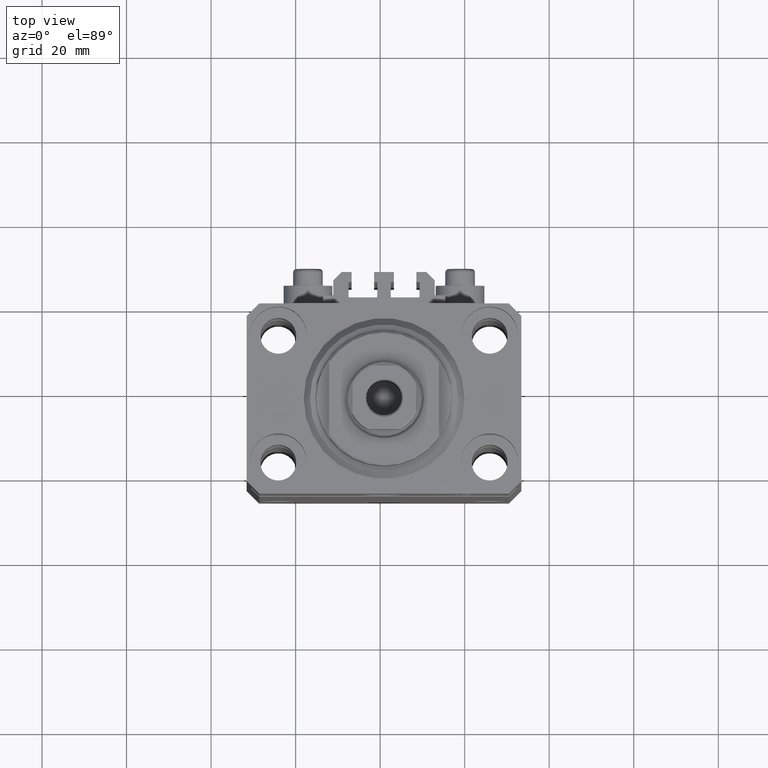
[diagram: clean part render]
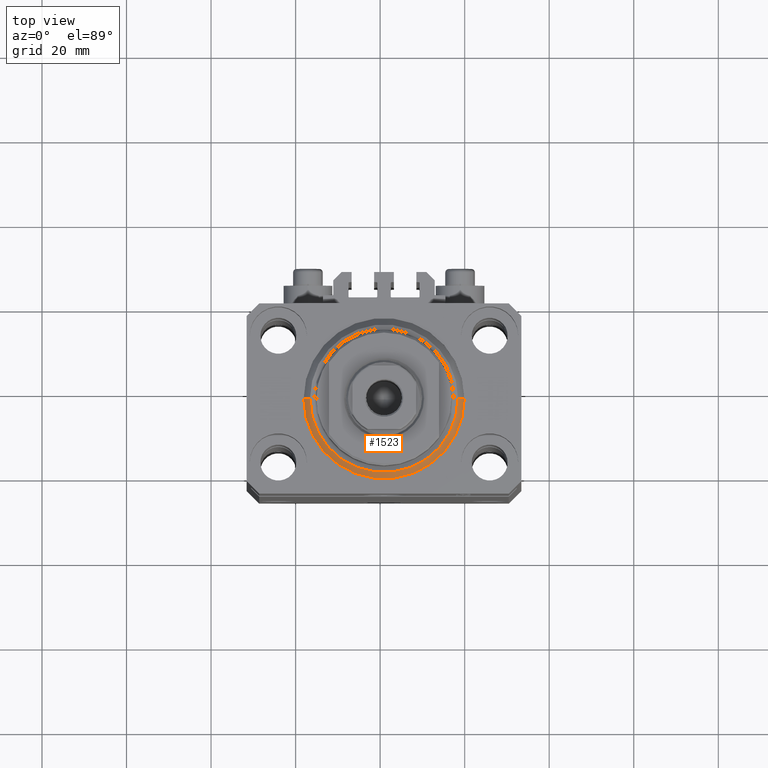
[diagram: same view with one face highlighted and labeled with its STEP entity id]
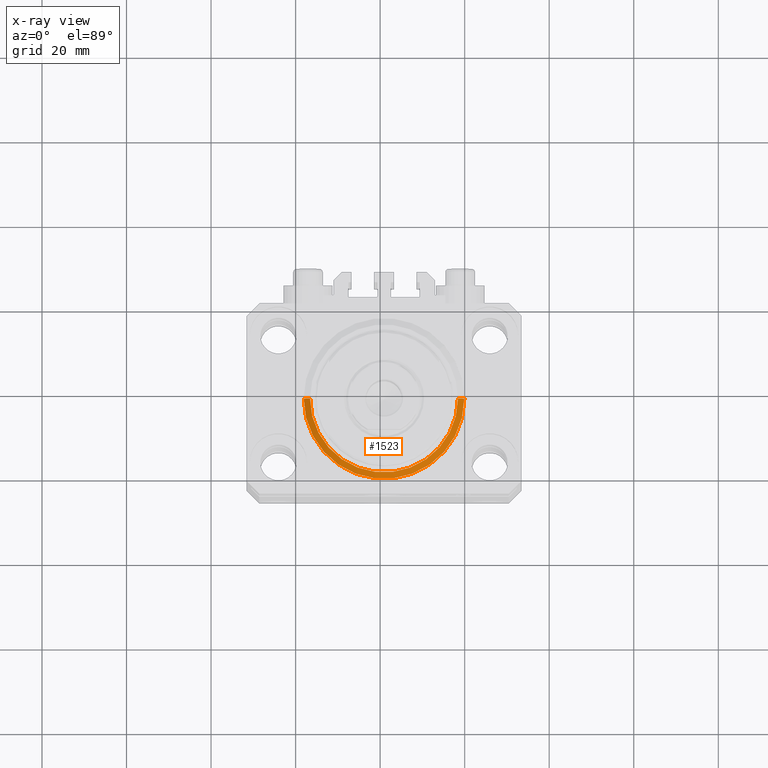
[diagram: x-ray of the same camera — body ghosted, the highlighted face saturated]
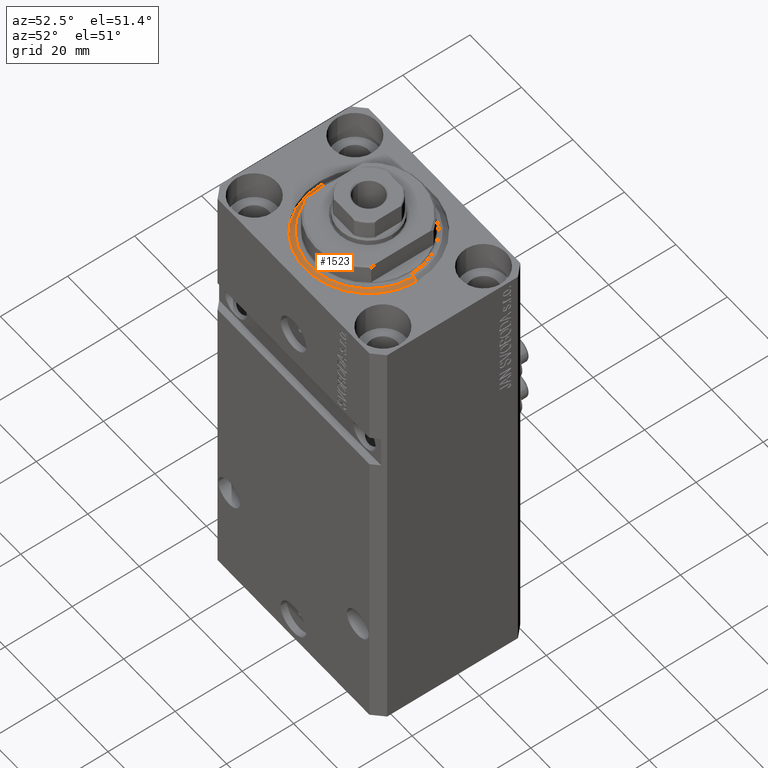
[diagram: same view with one face highlighted and labeled with its STEP entity id]
A machine part, top view. The second image highlights one B-rep face of the part: STEP entity #1523.
The next image is the same camera in x-ray: the body ghosted, the highlighted face saturated — about 0% of this face is hidden behind the body in this view.
A second angle (auxiliary view) of the same face is appended — the face is thin or edge-on in the first view.
In plain terms, the highlighted conical surface has half-angle 45 deg.
Its self-contained STEP definition (entity closure, byte-faithful):
#16 = ORIENTED_EDGE ( 'NONE', *, *, #8972, .T. ) ;
#1523 = ADVANCED_FACE ( 'NONE', ( #41724 ), #24438, .T. ) ;
#3313 = VERTEX_POINT ( 'NONE', #29621 ) ;
#3820 = VERTEX_POINT ( 'NONE', #46149 ) ;
#3847 = ORIENTED_EDGE ( 'NONE', *, *, #39961, .F. ) ;
#7596 = CARTESIAN_POINT ( 'NONE',  ( -17.49999999999999289, 2.234980408443919215E-15, 0.000000000000000000 ) ) ;
#8316 = AXIS2_PLACEMENT_3D ( 'NONE', #27723, #9404, #24108 ) ;
#8642 = DIRECTION ( 'NONE',  ( -0.000000000000000000, -0.000000000000000000, -1.000000000000000000 ) ) ;
#8972 = EDGE_CURVE ( 'NONE', #26490, #3313, #14731, .T. ) ;
#9122 = AXIS2_PLACEMENT_3D ( 'NONE', #26731, #8642, #11792 ) ;
#9404 = DIRECTION ( 'NONE',  ( -0.000000000000000000, -0.000000000000000000, 1.000000000000000000 ) ) ;
#11756 = AXIS2_PLACEMENT_3D ( 'NONE', #24179, #19875, #12873 ) ;
#11792 = DIRECTION ( 'NONE',  ( 1.000000000000000000, 0.000000000000000000, 0.000000000000000000 ) ) ;
#12873 = DIRECTION ( 'NONE',  ( 1.000000000000000000, 0.000000000000000000, 0.000000000000000000 ) ) ;
#13430 = CARTESIAN_POINT ( 'NONE',  ( 17.49999999999999289, 0.000000000000000000, 0.000000000000000000 ) ) ;
#14731 = LINE ( 'NONE', #18332, #44606 ) ;
#15620 = CIRCLE ( 'NONE', #11756, 19.00000000000000000 ) ;
#18332 = CARTESIAN_POINT ( 'NONE',  ( 19.00000000000000000, 0.000000000000000000, 1.500000000000004885 ) ) ;
#19710 = VERTEX_POINT ( 'NONE', #7596 ) ;
#19875 = DIRECTION ( 'NONE',  ( -0.000000000000000000, -0.000000000000000000, 1.000000000000000000 ) ) ;
#22219 = CIRCLE ( 'NONE', #9122, 17.49999999999999289 ) ;
#24108 = DIRECTION ( 'NONE',  ( 1.000000000000000000, 0.000000000000000000, 0.000000000000000000 ) ) ;
#24179 = CARTESIAN_POINT ( 'NONE',  ( 0.000000000000000000, 0.000000000000000000, 1.500000000000004885 ) ) ;
#24438 = CONICAL_SURFACE ( 'NONE', #8316, 19.00000000000000000, 0.7853981633974492782 ) ;
#25411 = EDGE_LOOP ( 'NONE', ( #3847, #44417, #16, #25598 ) ) ;
#25598 = ORIENTED_EDGE ( 'NONE', *, *, #44667, .F. ) ;
#26490 = VERTEX_POINT ( 'NONE', #13430 ) ;
#26731 = CARTESIAN_POINT ( 'NONE',  ( 0.000000000000000000, 0.000000000000000000, 0.000000000000000000 ) ) ;
#27723 = CARTESIAN_POINT ( 'NONE',  ( 0.000000000000000000, 0.000000000000000000, 1.500000000000004885 ) ) ;
#29425 = DIRECTION ( 'NONE',  ( 0.7071067811865483499, 0.000000000000000000, 0.7071067811865467956 ) ) ;
#29621 = CARTESIAN_POINT ( 'NONE',  ( 19.00000000000000000, 2.326828918379970970E-15, 1.500000000000004885 ) ) ;
#33956 = VECTOR ( 'NONE', #34107, 1000.000000000000000 ) ;
#34107 = DIRECTION ( 'NONE',  ( -0.7071067811865483499, 8.659560562354943952E-17, 0.7071067811865467956 ) ) ;
#35725 = EDGE_CURVE ( 'NONE', #26490, #19710, #22219, .T. ) ;
#37475 = LINE ( 'NONE', #44953, #33956 ) ;
#39961 = EDGE_CURVE ( 'NONE', #19710, #3820, #37475, .T. ) ;
#41724 = FACE_OUTER_BOUND ( 'NONE', #25411, .T. ) ;
#44417 = ORIENTED_EDGE ( 'NONE', *, *, #35725, .F. ) ;
#44606 = VECTOR ( 'NONE', #29425, 1000.000000000000000 ) ;
#44667 = EDGE_CURVE ( 'NONE', #3820, #3313, #15620, .T. ) ;
#44953 = CARTESIAN_POINT ( 'NONE',  ( -19.00000000000000000, 2.326828918379970970E-15, 1.500000000000004885 ) ) ;
#46149 = CARTESIAN_POINT ( 'NONE',  ( -19.00000000000000000, 0.000000000000000000, 1.500000000000004885 ) ) ;